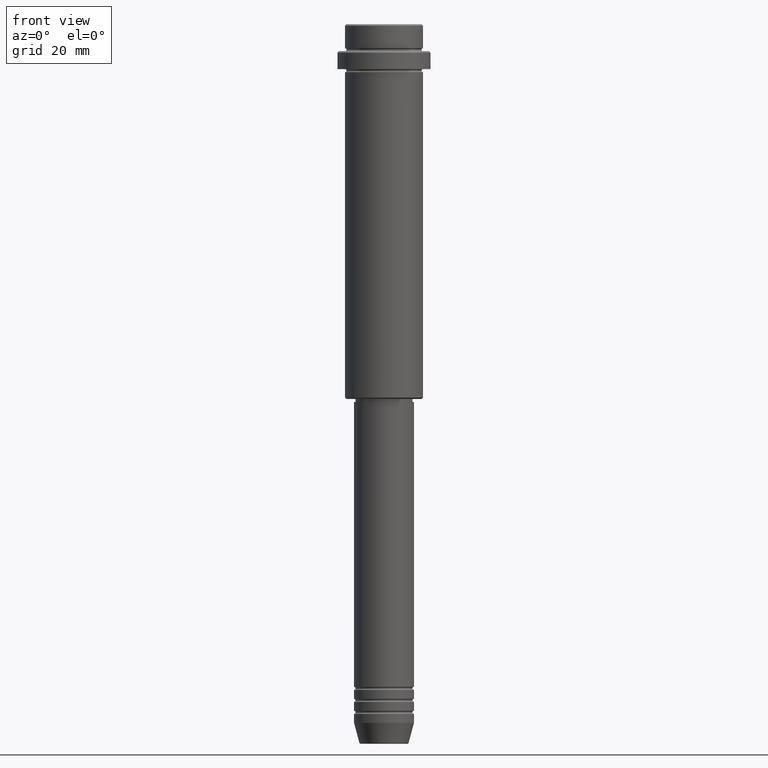
[diagram: clean part render]
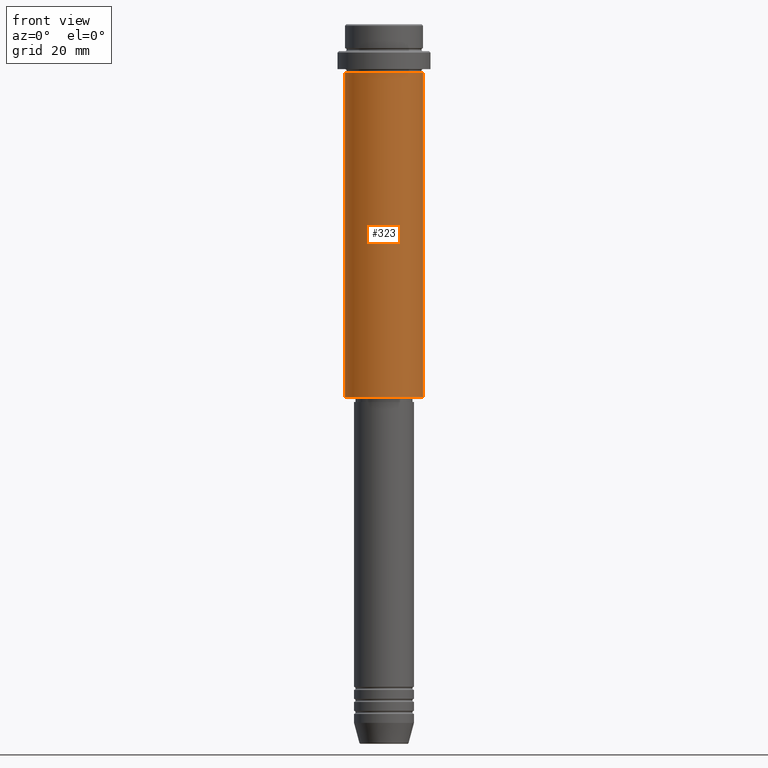
[diagram: same view with one face highlighted and labeled with its STEP entity id]
A machine part, front view. The second image highlights one B-rep face of the part: STEP entity #323.
In plain terms, the highlighted cylindrical surface (partial cylindrical patch) has radius 13 mm, axis along (-0, -0, 1).
Its self-contained STEP definition (entity closure, byte-faithful):
#17 = EDGE_CURVE ( 'NONE', #755, #599, #1017, .T. ) ;
#45 = CYLINDRICAL_SURFACE ( 'NONE', #1043, 13.00000000000000000 ) ;
#60 = DIRECTION ( 'NONE',  ( 1.000000000000000000, 0.000000000000000000, 0.000000000000000000 ) ) ;
#88 = AXIS2_PLACEMENT_3D ( 'NONE', #925, #1148, #1143 ) ;
#252 = CARTESIAN_POINT ( 'NONE',  ( 13.00000000000000000, 0.000000000000000000, -124.4999999999999716 ) ) ;
#258 = LINE ( 'NONE', #373, #799 ) ;
#271 = CARTESIAN_POINT ( 'NONE',  ( -13.00000000000000000, 1.592040838891559095E-15, -124.4999999999999716 ) ) ;
#307 = AXIS2_PLACEMENT_3D ( 'NONE', #983, #1171, #443 ) ;
#323 = ADVANCED_FACE ( 'NONE', ( #489 ), #45, .T. ) ;
#347 = EDGE_CURVE ( 'NONE', #540, #1158, #972, .T. ) ;
#351 = ORIENTED_EDGE ( 'NONE', *, *, #1211, .F. ) ;
#373 = CARTESIAN_POINT ( 'NONE',  ( -13.00000000000000000, 1.592040838891559095E-15, 0.000000000000000000 ) ) ;
#397 = DIRECTION ( 'NONE',  ( -0.000000000000000000, -0.000000000000000000, 1.000000000000000000 ) ) ;
#443 = DIRECTION ( 'NONE',  ( -1.000000000000000000, 0.000000000000000000, 0.000000000000000000 ) ) ;
#448 = VECTOR ( 'NONE', #532, 1000.000000000000000 ) ;
#455 = ORIENTED_EDGE ( 'NONE', *, *, #17, .T. ) ;
#489 = FACE_OUTER_BOUND ( 'NONE', #1166, .T. ) ;
#532 = DIRECTION ( 'NONE',  ( -0.000000000000000000, -0.000000000000000000, 1.000000000000000000 ) ) ;
#540 = VERTEX_POINT ( 'NONE', #874 ) ;
#599 = VERTEX_POINT ( 'NONE', #252 ) ;
#667 = CARTESIAN_POINT ( 'NONE',  ( 13.00000000000000000, 0.000000000000000000, -16.00000000000000000 ) ) ;
#755 = VERTEX_POINT ( 'NONE', #271 ) ;
#799 = VECTOR ( 'NONE', #1125, 1000.000000000000000 ) ;
#808 = ORIENTED_EDGE ( 'NONE', *, *, #998, .T. ) ;
#874 = CARTESIAN_POINT ( 'NONE',  ( -13.00000000000000000, 1.592040838891559095E-15, -16.00000000000000000 ) ) ;
#925 = CARTESIAN_POINT ( 'NONE',  ( 0.000000000000000000, 0.000000000000000000, -16.00000000000000000 ) ) ;
#972 = CIRCLE ( 'NONE', #88, 13.00000000000000000 ) ;
#983 = CARTESIAN_POINT ( 'NONE',  ( 0.000000000000000000, 0.000000000000000000, -124.4999999999999716 ) ) ;
#998 = EDGE_CURVE ( 'NONE', #599, #1158, #1057, .T. ) ;
#1017 = CIRCLE ( 'NONE', #307, 13.00000000000000000 ) ;
#1043 = AXIS2_PLACEMENT_3D ( 'NONE', #1239, #397, #60 ) ;
#1057 = LINE ( 'NONE', #1070, #448 ) ;
#1070 = CARTESIAN_POINT ( 'NONE',  ( 13.00000000000000000, 0.000000000000000000, 0.000000000000000000 ) ) ;
#1125 = DIRECTION ( 'NONE',  ( -0.000000000000000000, -0.000000000000000000, 1.000000000000000000 ) ) ;
#1143 = DIRECTION ( 'NONE',  ( 1.000000000000000000, 0.000000000000000000, 0.000000000000000000 ) ) ;
#1148 = DIRECTION ( 'NONE',  ( -0.000000000000000000, -0.000000000000000000, 1.000000000000000000 ) ) ;
#1158 = VERTEX_POINT ( 'NONE', #667 ) ;
#1166 = EDGE_LOOP ( 'NONE', ( #351, #455, #808, #1309 ) ) ;
#1171 = DIRECTION ( 'NONE',  ( -0.000000000000000000, -0.000000000000000000, 1.000000000000000000 ) ) ;
#1211 = EDGE_CURVE ( 'NONE', #755, #540, #258, .T. ) ;
#1239 = CARTESIAN_POINT ( 'NONE',  ( 0.000000000000000000, 0.000000000000000000, 0.000000000000000000 ) ) ;
#1309 = ORIENTED_EDGE ( 'NONE', *, *, #347, .F. ) ;